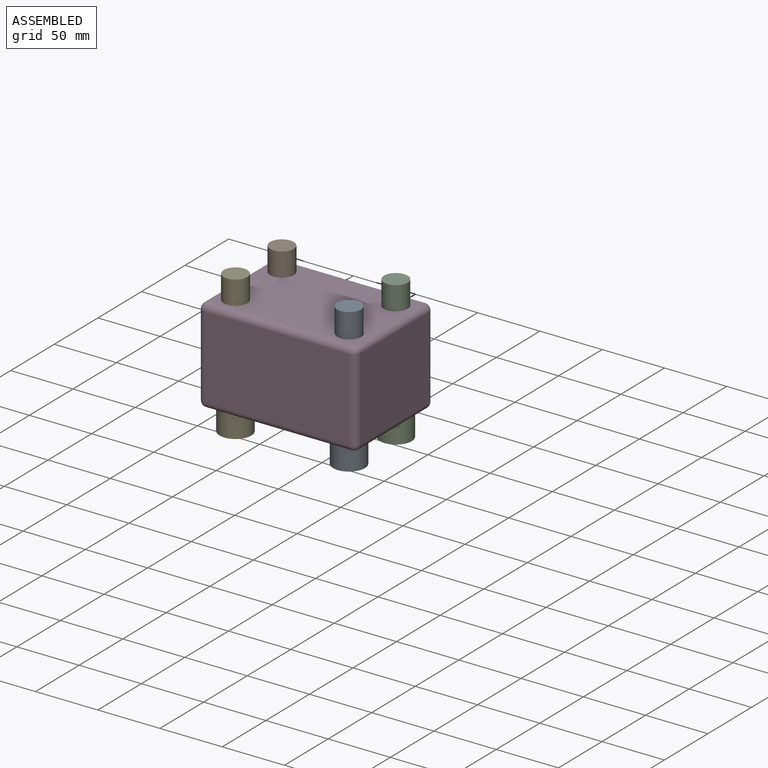
[diagram: assembled view]
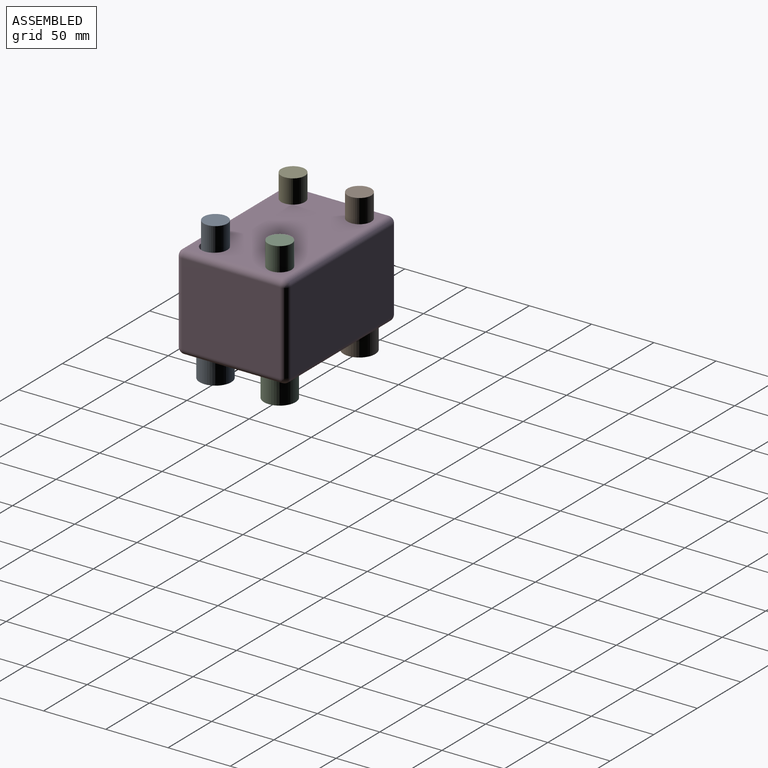
[diagram: assembled view, second angle]
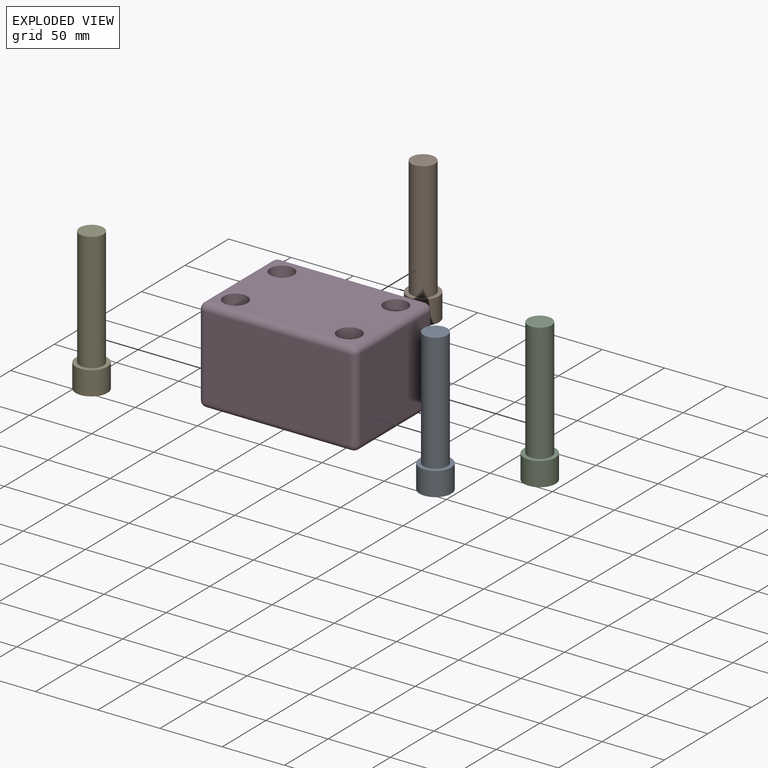
[diagram: exploded view]
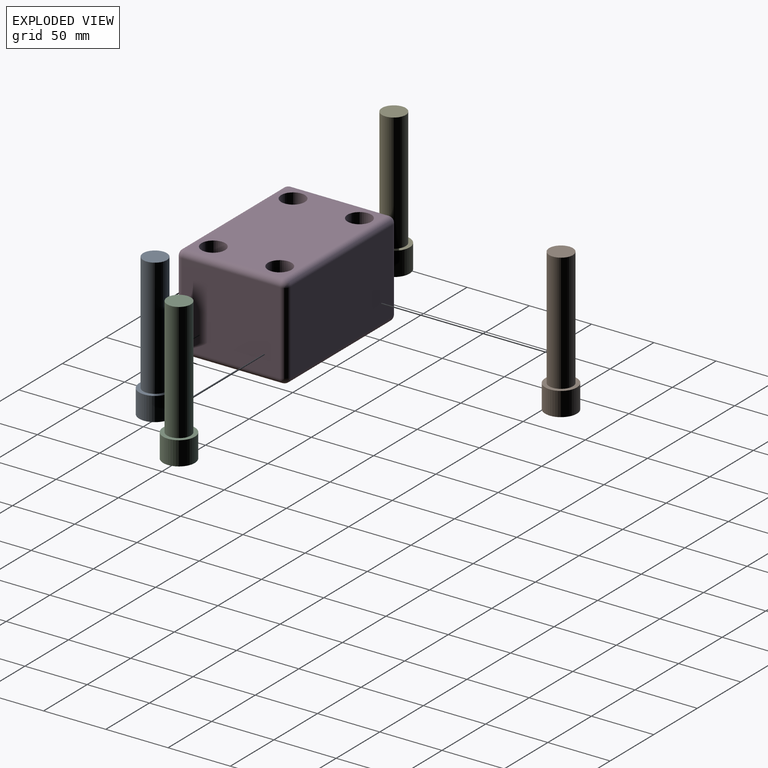
[diagram: exploded view, second angle]
ASSEMBLY  parts=5 mates=4
PART A: 5 faces, bbox 25.4x25.4x114.3 mm
  f0: plane 25.4x25.4mm, normal (0,0,-1), area 506.7mm2, adj f4
  f1: plane 19.05x19.05mm, normal (0,0,1), area 285mm2, adj f2
  f2: cylinder r=9.53mm len=95.25mm, axis (0,0,1), area 5700.5mm2, adj f1,f3
  f3: plane 25.4x25.4mm, normal (0,0,1), area 221.7mm2, adj f2,f4
  f4: cylinder r=12.7mm len=25.4mm, axis (0,0,1), area 1520.1mm2, adj f0,f3
PART B: same geometry as A
PART C: same geometry as A
PART D: 30 faces, bbox 127x88.9x76.2 mm
  f0: plane 78.74x66.04mm, normal (1,0,0), area 5200mm2, adj f11,f15,f17,f23
  f1: plane 116.84x66.04mm, normal (0,1,0), area 7716.1mm2, adj f8,f14,f17,f24
  f2: plane 78.74x66.04mm, normal (-1,0,0), area 5200mm2, adj f6,f8,f9,f20
  f3: plane 116.84x66.04mm, normal (0,-1,0), area 7716.1mm2, adj f6,f10,f11,f19
  f4: plane 116.84x78.74mm, normal (0,0,1), area 8059.9mm2, adj f19,f20,f23,f24,f26,f27,f28,f29
  f5: plane 116.84x78.74mm, normal (0,0,-1), area 8059.9mm2, adj f9,f10,f14,f15,f26,f27,f28,f29
  f6: cylinder r=5.08mm len=66.04mm, axis (0,0,1), area 527mm2, adj f2,f3,f7,f18
  f7: sphere r=5.08mm, area 40.5mm2, adj f6,f9,f10
  f8: cylinder r=5.08mm len=66.04mm, axis (0,0,-1), area 527mm2, adj f1,f2,f12,f22
  f9: cylinder r=5.08mm len=78.74mm, axis (0,-1,0), area 628.3mm2, adj f2,f5,f7,f12
  f10: cylinder r=5.08mm len=116.84mm, axis (1,0,0), area 932.3mm2, adj f3,f5,f7,f13
  f11: cylinder r=5.08mm len=66.04mm, axis (0,0,-1), area 527mm2, adj f0,f3,f13,f21
  f12: sphere r=5.08mm, area 40.5mm2, adj f8,f9,f14
  f13: sphere r=5.08mm, area 40.5mm2, adj f10,f11,f15
  f14: cylinder r=5.08mm len=116.84mm, axis (-1,0,0), area 932.3mm2, adj f1,f5,f12,f16
  f15: cylinder r=5.08mm len=78.74mm, axis (0,1,0), area 628.3mm2, adj f0,f5,f13,f16
  f16: sphere r=5.08mm, area 40.5mm2, adj f14,f15,f17
  f17: cylinder r=5.08mm len=66.04mm, axis (0,0,1), area 527mm2, adj f0,f1,f16,f25
  f18: sphere r=5.08mm, area 40.5mm2, adj f6,f19,f20
  f19: cylinder r=5.08mm len=116.84mm, axis (-1,0,0), area 932.3mm2, adj f3,f4,f18,f21
  f20: cylinder r=5.08mm len=78.74mm, axis (0,1,0), area 628.3mm2, adj f2,f4,f18,f22
  f21: sphere r=5.08mm, area 40.5mm2, adj f11,f19,f23
  f22: sphere r=5.08mm, area 40.5mm2, adj f8,f20,f24
  f23: cylinder r=5.08mm len=78.74mm, axis (0,-1,0), area 628.3mm2, adj f0,f4,f21,f25
  f24: cylinder r=5.08mm len=116.84mm, axis (1,0,0), area 932.3mm2, adj f1,f4,f22,f25
  f25: sphere r=5.08mm, area 40.5mm2, adj f17,f23,f24
  f26: cylinder r=9.53mm len=76.2mm, axis (0,0,-1), area 4560.4mm2, adj f4,f5
  f27: cylinder r=9.53mm len=76.2mm, axis (0,0,-1), area 4560.4mm2, adj f4,f5
  f28: cylinder r=9.53mm len=76.2mm, axis (0,0,-1), area 4560.4mm2, adj f4,f5
  f29: cylinder r=9.53mm len=76.2mm, axis (0,0,-1), area 4560.4mm2, adj f4,f5
PART E: same geometry as A
PLACE A t=(-0.97,-52.29,0.15)mm
PLACE B t=(-91.44,0,0)mm
PLACE C at identity
PLACE D at identity fixed
PLACE E t=(-91.44,-53.34,0)mm
MATE fastened B.f2 <-> D.f28  axis (0,0,1) through (-45.72,26.67,0)mm
MATE fastened E.f2 <-> D.f26  axis (0,0,1) through (-45.72,-26.67,0)mm
MATE fastened C.f2 <-> D.f27  axis (0,0,1) through (45.72,26.67,0)mm
MATE cylindrical C.f2 <-> D.f27  axis (0,0,1) through (45.72,26.67,0)mm
